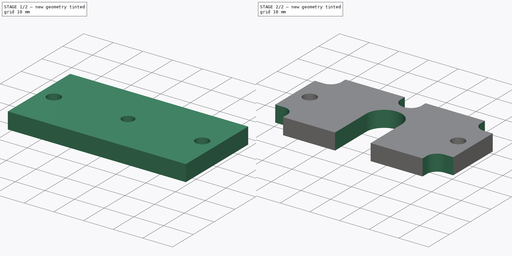
[diagram: build sequence overview — one tinted view per stage of 2, left to right]
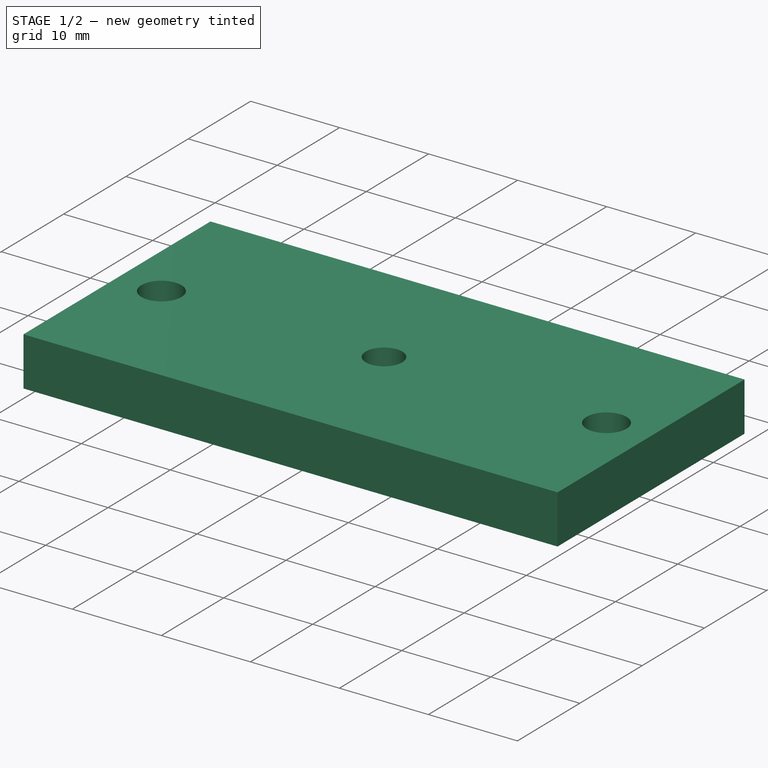
[diagram: stage 1 of 2 — iso view after this stage's code; geometry added in this stage tinted green]
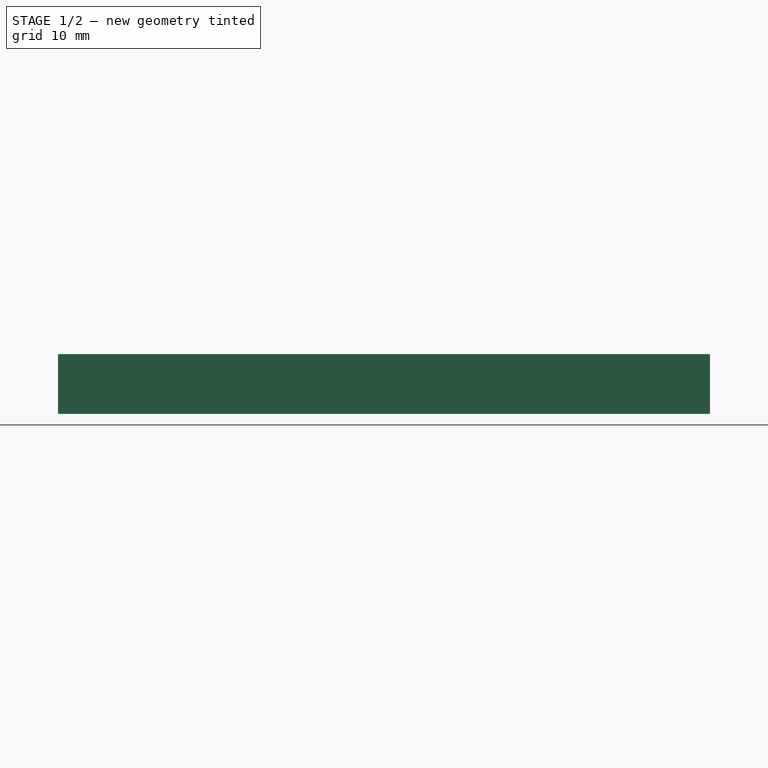
[diagram: stage 1 of 2 — front view after this stage's code; geometry added in this stage tinted green]
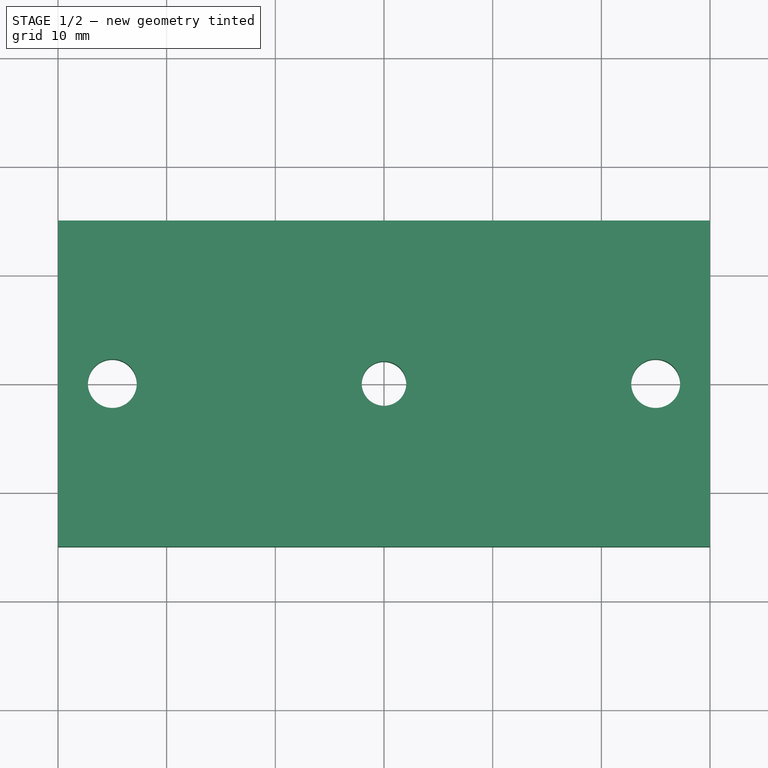
[diagram: stage 1 of 2 — top view after this stage's code; geometry added in this stage tinted green]
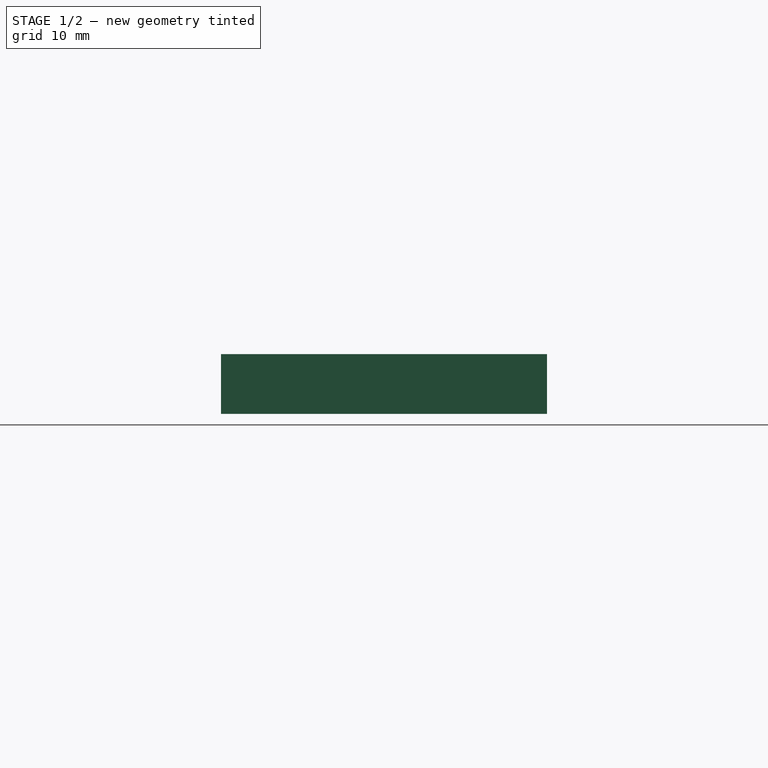
[diagram: stage 1 of 2 — right view after this stage's code; geometry added in this stage tinted green]
FCSTD DOCUMENT
Label: e3d-mount-2
objects: Sketcher::SketchObject×2, PartDesign::Pad×1, PartDesign::Pocket×1
note: 6 computed .brp shape members not serialized (recipe doc carries the construction recipe); baked Part::Feature solids carry a one-line shape summary decoded from their .brp

FEATURE [Sketcher::SketchObject] Sketch
  sketch-geometry (7):
    g0: Circle CenterX=25 CenterY=0 CenterZ=0 NormalX=0 NormalY=0 NormalZ=1 Radius=2.25
    g1: Circle CenterX=-25 CenterY=0 CenterZ=0 NormalX=0 NormalY=0 NormalZ=1 Radius=2.25
    g2: LineSegment StartX=-30 StartY=15 StartZ=0 EndX=30 EndY=15 EndZ=0
    g3: LineSegment StartX=30 StartY=15 StartZ=0 EndX=30 EndY=-15 EndZ=0
    g4: LineSegment StartX=-30 StartY=-15 StartZ=0 EndX=-30 EndY=15 EndZ=0
    g5: LineSegment StartX=-30 StartY=-15 StartZ=0 EndX=30 EndY=-15 EndZ=0
    g6: Circle CenterX=0 CenterY=0 CenterZ=0 NormalX=0 NormalY=0 NormalZ=1 Radius=2.05
  constraints (19):
    c: Equal(g0,g1)
    c: Radius(g0) = 2.25
    c: Symmetric(g1,g0,g-2)
    c: PointOnObject(g1,g-1)
    c: Distance(g1,g0) = 50
    c: Coincident(g2,g3)
    c: Coincident(g4,g2)
    c: Horizontal(g2)
    c: Vertical(g3)
    c: Symmetric(g2,g2,g-2)
    c: Symmetric(g4,g2,g-1)
    c: Distance(g2) = 60
    c: Distance(g4,g2) = 30
    c: Coincident(g4,g5)
    c: Horizontal(g5)
    c: Symmetric(g3,g4,g-2)
    c: Coincident(g5,g3)
    c: Coincident(g6,g-1)
    c: Radius(g6) = 2.05
FEATURE [PartDesign::Pad] Pad
  Length = 5.5
  Length2 = 100
  Sketch = -> Sketch
  Type = 0
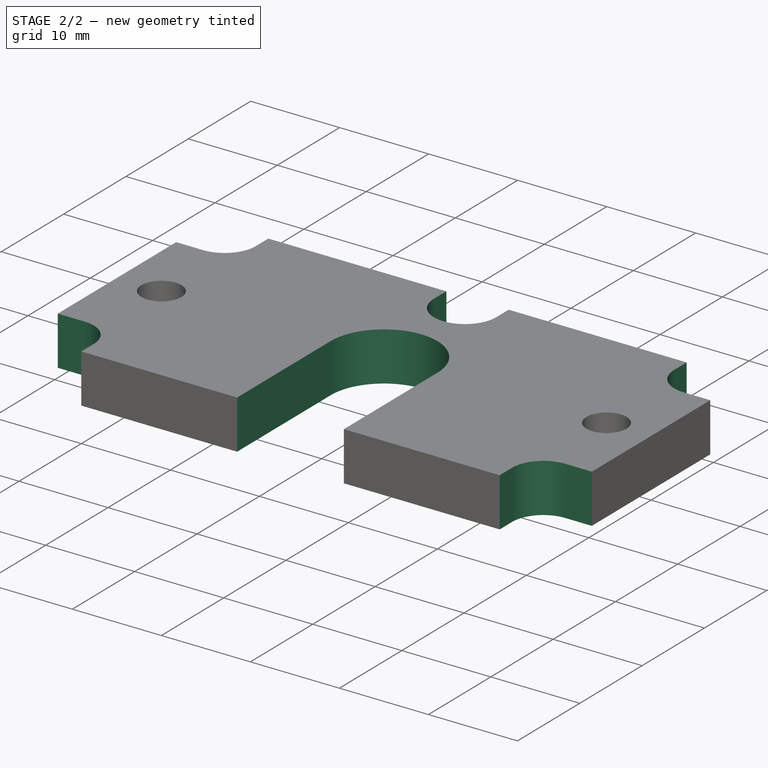
[diagram: stage 2 of 2 — iso view after this stage's code; geometry added in this stage tinted green]
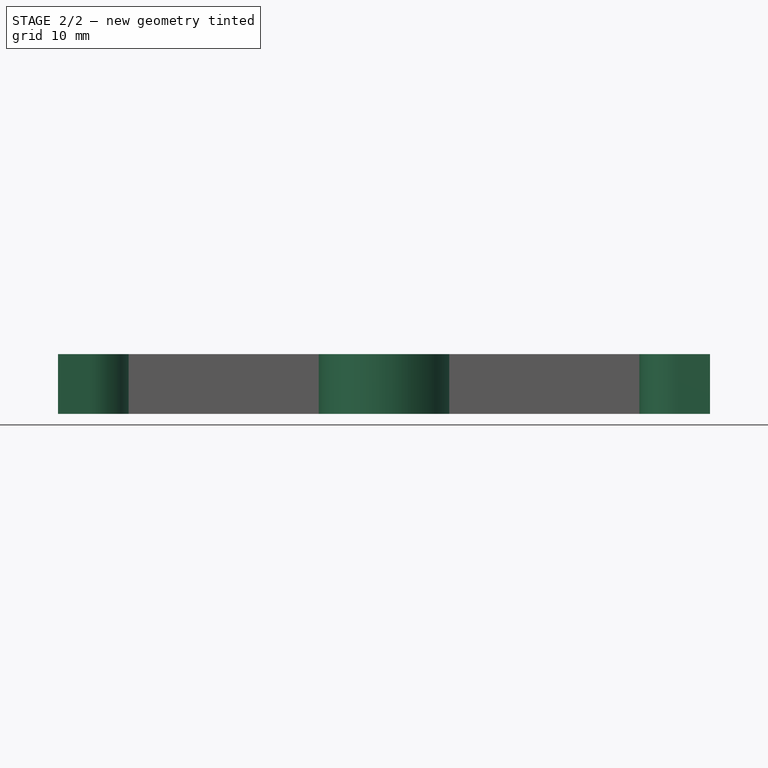
[diagram: stage 2 of 2 — front view after this stage's code; geometry added in this stage tinted green]
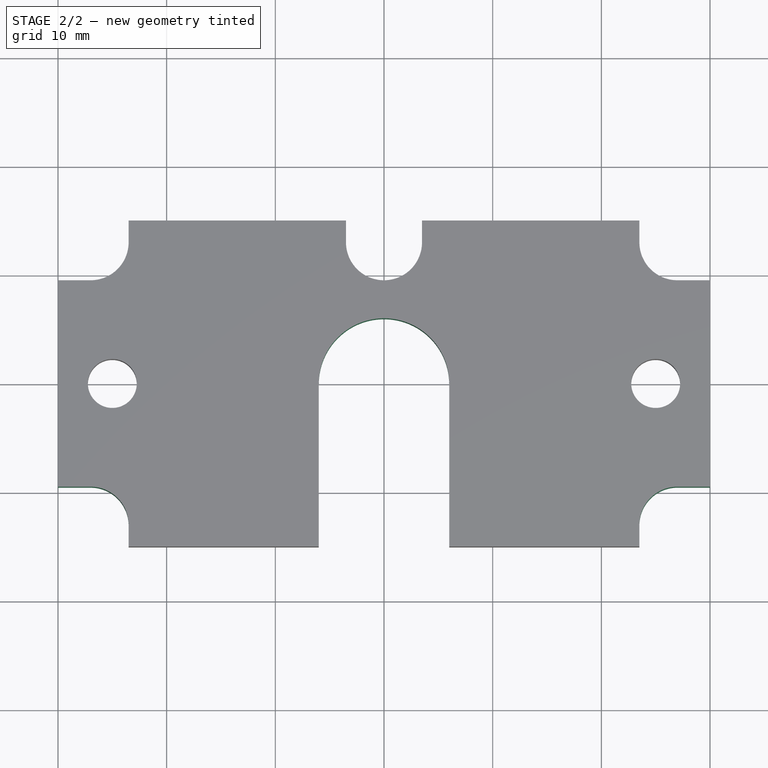
[diagram: stage 2 of 2 — top view after this stage's code; geometry added in this stage tinted green]
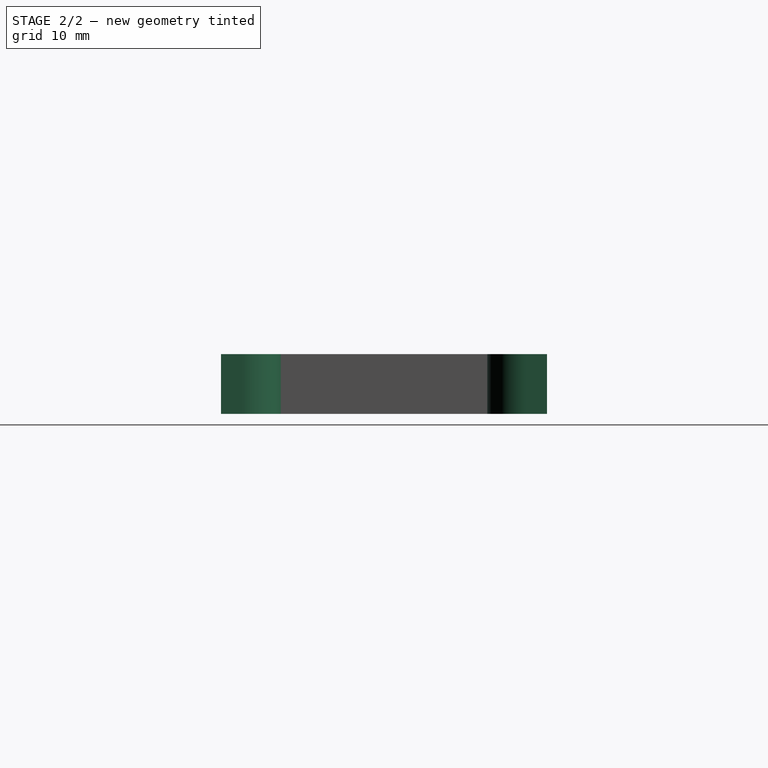
[diagram: stage 2 of 2 — right view after this stage's code; geometry added in this stage tinted green]
FEATURE [Sketcher::SketchObject] Sketch001
  Placement = pos=(0,0,5.5) rot=(0,0,1;0rad)
  Support = -> Pad [Face9]
  sketch-geometry (28):
    g0: ArcOfCircle CenterX=-27 CenterY=13 CenterZ=0 NormalX=0 NormalY=0 NormalZ=1 Radius=3.5 StartAngle=4.71239 EndAngle=6.28319
    g1: ArcOfCircle CenterX=-27 CenterY=-13 CenterZ=0 NormalX=0 NormalY=0 NormalZ=1 Radius=3.5 StartAngle=1.2801e-07 EndAngle=1.5708
    g2: ArcOfCircle CenterX=0 CenterY=13 CenterZ=0 NormalX=0 NormalY=0 NormalZ=1 Radius=3.5 StartAngle=3.14159 EndAngle=6.28319
    g3: ArcOfCircle CenterX=27 CenterY=13 CenterZ=0 NormalX=0 NormalY=0 NormalZ=1 Radius=3.5 StartAngle=3.14159 EndAngle=4.71239
    g4: ArcOfCircle CenterX=27 CenterY=-13 CenterZ=0 NormalX=0 NormalY=0 NormalZ=1 Radius=3.5 StartAngle=1.5708 EndAngle=3.14159
    g5: LineSegment StartX=-23.5 StartY=13 StartZ=0 EndX=-23.5 EndY=18 EndZ=0
    g6: LineSegment StartX=-23.5 StartY=18 StartZ=0 EndX=-3.5 EndY=18 EndZ=0
    g7: LineSegment StartX=-3.5 StartY=18 StartZ=0 EndX=-3.5 EndY=13 EndZ=0
    g8: LineSegment StartX=3.5 StartY=13 StartZ=0 EndX=3.5 EndY=18 EndZ=0
    g9: LineSegment StartX=3.5 StartY=18 StartZ=0 EndX=23.5 EndY=18 EndZ=0
    g10: LineSegment StartX=23.5 StartY=18 StartZ=0 EndX=23.5 EndY=13 EndZ=0
    g11: LineSegment StartX=27 StartY=9.5 StartZ=0 EndX=32 EndY=9.5 EndZ=0
    g12: LineSegment StartX=32 StartY=9.5 StartZ=0 EndX=32 EndY=-9.5 EndZ=0
    g13: LineSegment StartX=32 StartY=-9.5 StartZ=0 EndX=27 EndY=-9.5 EndZ=0
    g14: LineSegment StartX=23.5 StartY=-13 StartZ=0 EndX=23.5 EndY=-18 EndZ=0
    g15: LineSegment StartX=-23.5 StartY=-18 StartZ=0 EndX=-23.5 EndY=-13 EndZ=0
    g16: LineSegment StartX=-27 StartY=-9.5 StartZ=0 EndX=-32 EndY=-9.5 EndZ=0
    g17: LineSegment StartX=-32 StartY=-9.5 StartZ=0 EndX=-32 EndY=9.5 EndZ=0
    g18: LineSegment StartX=-32 StartY=9.5 StartZ=0 EndX=-27 EndY=9.5 EndZ=0
    g19: LineSegment StartX=-37.5 StartY=22.5 StartZ=0 EndX=37.5 EndY=22.5 EndZ=0
    g20: LineSegment StartX=37.5 StartY=22.5 StartZ=0 EndX=37.5 EndY=-22.5 EndZ=0
    g21: LineSegment StartX=37.5 StartY=-22.5 StartZ=0 EndX=-37.5 EndY=-22.5 EndZ=0
    g22: LineSegment StartX=-37.5 StartY=-22.5 StartZ=0 EndX=-37.5 EndY=22.5 EndZ=0
    g23: LineSegment StartX=-23.5 StartY=-18 StartZ=0 EndX=-6 EndY=-18 EndZ=0
    g24: LineSegment StartX=23.5 StartY=-18 StartZ=0 EndX=6 EndY=-18 EndZ=0
    g25: LineSegment StartX=-6 StartY=0 StartZ=0 EndX=-6 EndY=-18 EndZ=0
    g26: LineSegment StartX=6 StartY=0 StartZ=0 EndX=6 EndY=-18 EndZ=0
    g27: ArcOfCircle CenterX=0 CenterY=0 CenterZ=0 NormalX=0 NormalY=0 NormalZ=1 Radius=6 StartAngle=0 EndAngle=3.14159
  constraints (85):
    c: Equal(g4,g3)
    c: Equal(g3,g2)
    c: Equal(g2,g0)
    c: Equal(g0,g1)
    c: Coincident(g5,g6)
    c: Coincident(g6,g7)
    c: Coincident(g7,g2)
    c: Tangent(g2,g8)
    c: Coincident(g8,g9)
    c: Coincident(g9,g10)
    c: Coincident(g10,g3)
    c: Coincident(g11,g12)
    c: Coincident(g12,g13)
    c: Coincident(g13,g4)
    c: Coincident(g15,g1)
    c: Coincident(g16,g17)
    c: Coincident(g17,g18)
    c: Coincident(g18,g0)
    c: Equal(g18,g16)
    c: Equal(g16,g5)
    c: Equal(g5,g7)
    c: Equal(g7,g8)
    c: Equal(g8,g10)
    c: Equal(g10,g11)
    c: Equal(g11,g13)
    c: Equal(g13,g14)
    c: Equal(g14,g15)
    c: Coincident(g16,g1)
    c: Coincident(g0,g5)
    c: Coincident(g11,g3)
    c: Vertical(g17)
    c: Vertical(g12)
    c: Horizontal(g9)
    c: Horizontal(g6)
    c: Tangent(g18,g0)
    c: Tangent(g16,g1)
    c: Tangent(g1,g15)
    c: Coincident(g4,g14)
    c: Tangent(g14,g4)
    c: Tangent(g13,g4)
    c: Tangent(g11,g3)
    c: Tangent(g10,g3)
    c: Horizontal(g16)
    c: Horizontal(g18)
    c: Vertical(g5)
    c: Vertical(g7)
    c: Vertical(g8)
    c: Vertical(g10)
    c: Vertical(g15)
    c: Vertical(g14)
    c: Radius(g3) = 3.5
    c: Tangent(g7,g2)
    c: DistanceX(g0) = -27
    c: DistanceY(g0) = 13
    c: PointOnObject(g2,g-2)
    c: Symmetric(g0,g3,g-2)
    c: Symmetric(g4,g3,g-1)
    c: Horizontal(g13)
    c: Distance(g3,g9) = 5
    c: Coincident(g19,g20)
    c: Coincident(g20,g21)
    c: Coincident(g21,g22)
    c: Coincident(g22,g19)
    c: Horizontal(g19)
    c: Horizontal(g21)
    c: Symmetric(g21,g20,g-2)
    c: Symmetric(g21,g19,g-1)
    c: Vertical(g20)
    c: Distance(g21) = 75
    c: Distance(g22) = 45
    c: Coincident(g23,g15)
    c: Horizontal(g23)
    c: Coincident(g24,g14)
    c: Horizontal(g24)
    c: Coincident(g25,g23)
    c: Coincident(g26,g24)
    c: Vertical(g25)
    c: Vertical(g26)
    c: Coincident(g27,g-1)
    c: PointOnObject(g27,g-1)
    c: PointOnObject(g27,g-1)
    c: Coincident(g25,g27)
    c: Coincident(g26,g27)
    c: Radius(g27) = 6
    c: Symmetric(g14,g15,g-2)
FEATURE [PartDesign::Pocket] Pocket
  Length = 2
  Sketch = -> Sketch001
  Type = 1
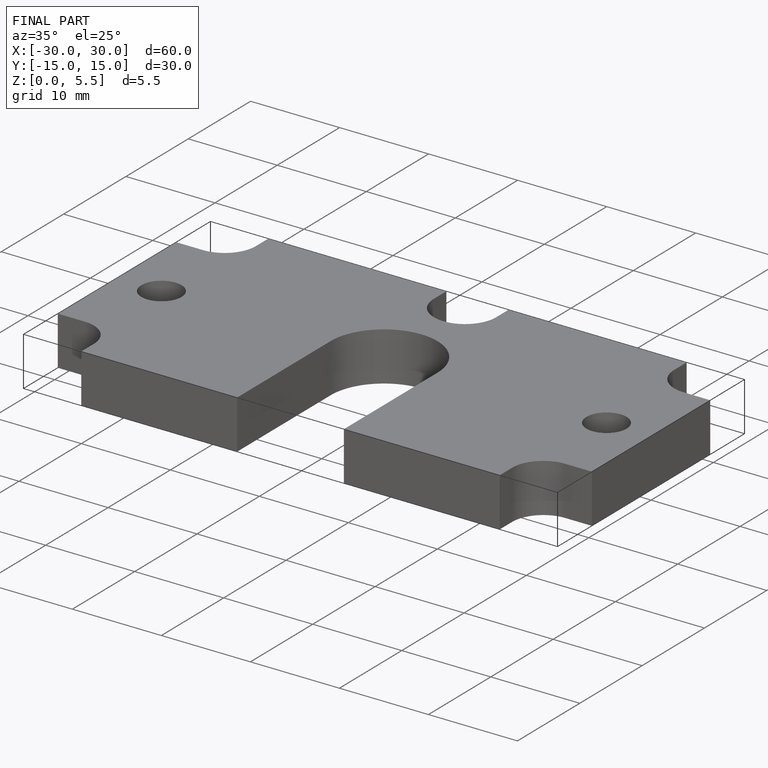
[diagram: finished part — iso view with bounding-box wireframe]
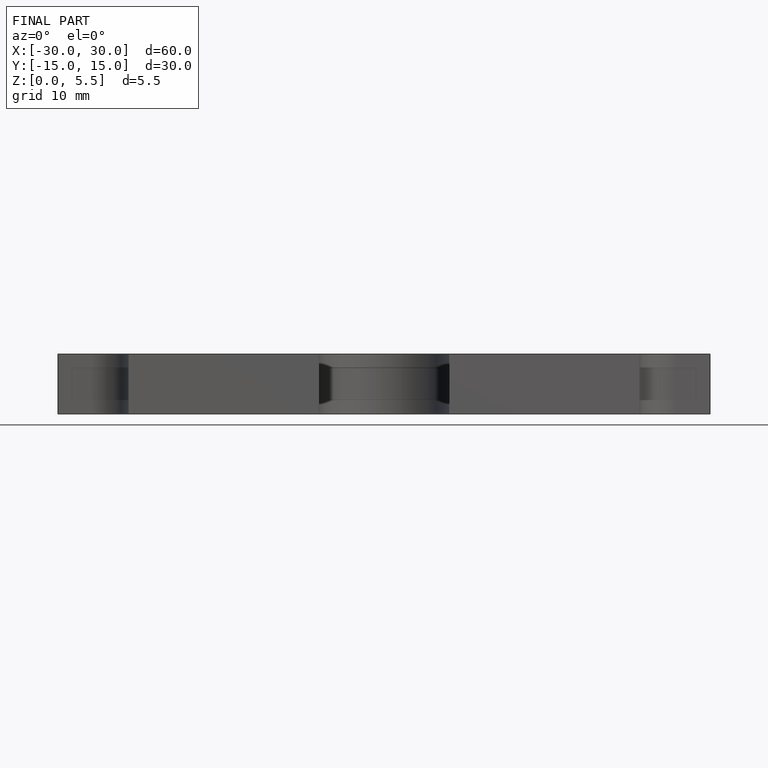
[diagram: finished part — front view with bounding-box wireframe]
